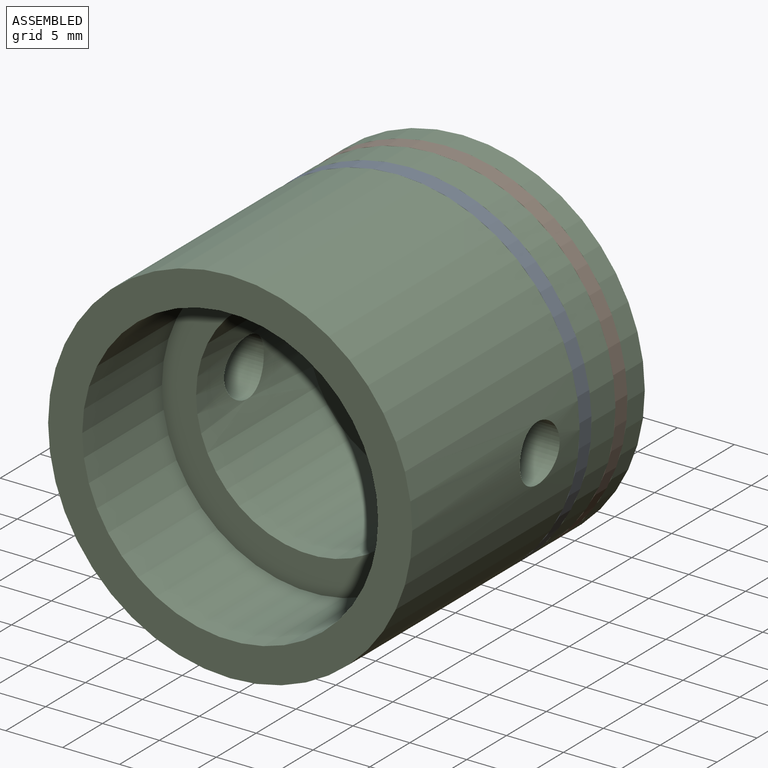
[diagram: assembled view]
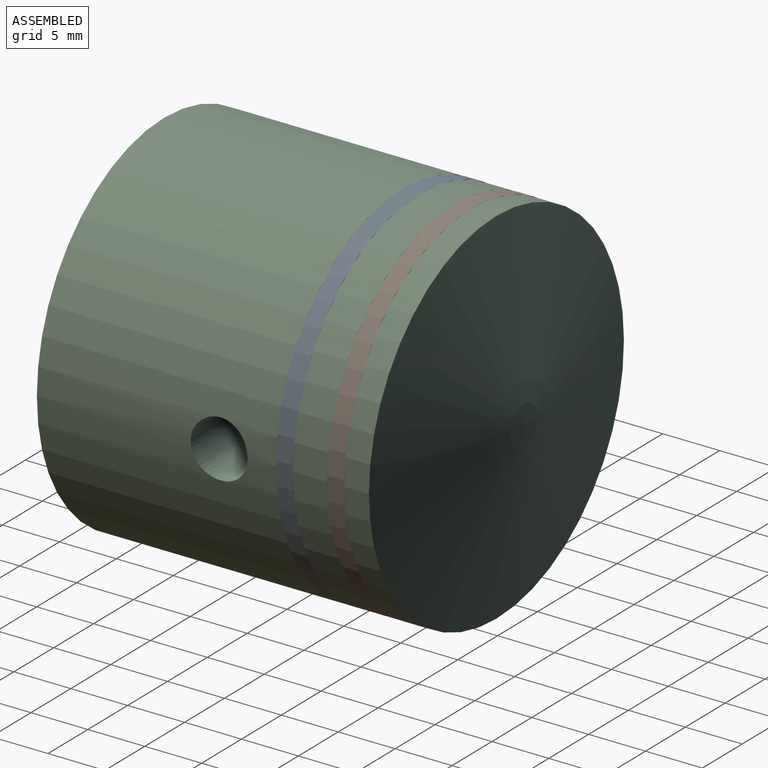
[diagram: assembled view, second angle]
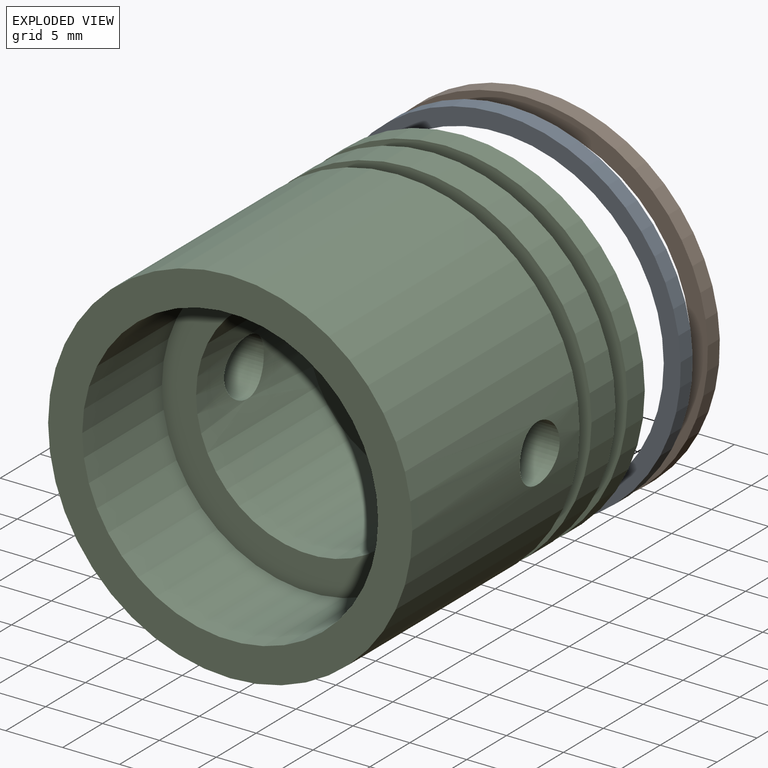
[diagram: exploded view]
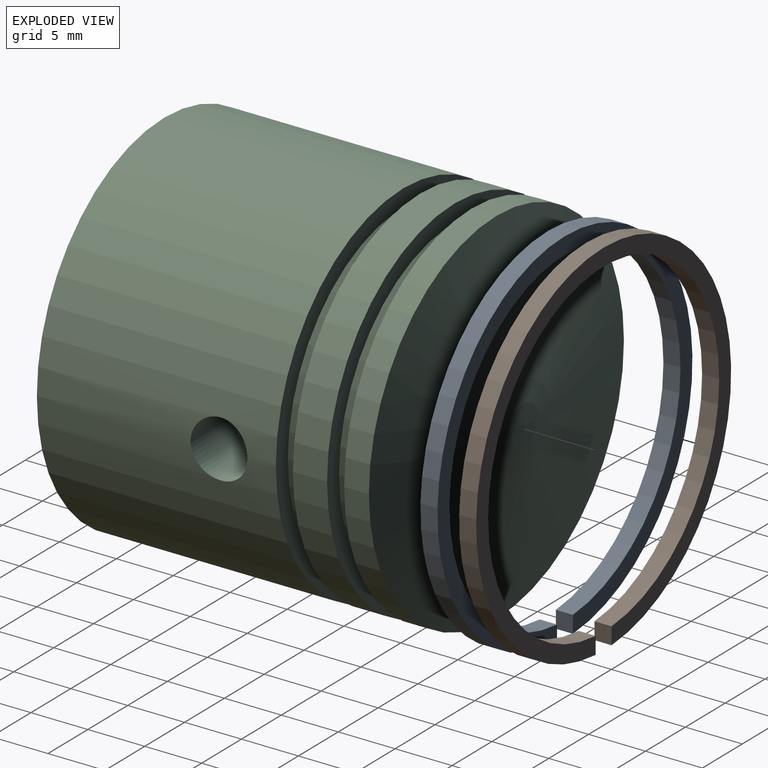
[diagram: exploded view, second angle]
ASSEMBLY  parts=3 mates=2
PART A: 6 faces, bbox 32x1.5x32 mm
  f0: plane 1.5x1.5mm, normal (1,0,0), area 2.3mm2, adj f1,f3,f4,f5
  f1: cylinder r=14.5mm len=29mm, axis (0,1,0), area 133.7mm2, adj f0,f2,f4,f5
  f2: plane 1.5x1.5mm, normal (-1,0,0), area 2.3mm2, adj f1,f3,f4,f5
  f3: cylinder r=16mm len=32mm, axis (0,1,0), area 147.8mm2, adj f0,f2,f4,f5
  f4: plane 32x31.97mm, normal (0,-1,0), area 140.7mm2, adj f0,f1,f2,f3
  f5: plane 32x31.97mm, normal (0,1,0), area 140.7mm2, adj f0,f1,f2,f3
PART B: same geometry as A
PART C: 18 faces, bbox 32x32x31.7 mm
  f0: cylinder r=10mm len=20mm, axis (0,0,-1), area 840.1mm2, adj f5,f6,f16,f17
  f1: cylinder r=16mm len=32mm, axis (0,0,-1), area 2071.7mm2, adj f8,f9,f16,f17
  f2: cylinder r=16mm len=32mm, axis (0,0,-1), area 219mm2, adj f3,f15
  f3: cone r=3.47mm half-angle=80deg, axis (0,0,-1), area 778.2mm2, adj f2,f4
  f4: sphere r=20mm, area 38.2mm2, adj f3
  f5: plane 20x20mm, normal (0,0,-1), area 314.2mm2, adj f0
  f6: plane 26x26mm, normal (0,0,-1), area 216.8mm2, adj f0,f7
  f7: cylinder r=13mm len=26mm, axis (0,0,-1), area 816.8mm2, adj f6,f8
  f8: plane 32x32mm, normal (0,0,-1), area 273.3mm2, adj f1,f7
  f9: plane 32x32mm, normal (0,0,1), area 143.7mm2, adj f1,f10
  f10: cylinder r=14.5mm len=29mm, axis (0,0,-1), area 136.7mm2, adj f9,f11
  f11: plane 32x32mm, normal (0,0,-1), area 143.7mm2, adj f10,f12
  f12: cylinder r=16mm len=32mm, axis (0,0,-1), area 301.6mm2, adj f11,f13
  f13: plane 32x32mm, normal (0,0,1), area 143.7mm2, adj f12,f14
  f14: cylinder r=14.5mm len=29mm, axis (0,0,-1), area 136.7mm2, adj f13,f15
  f15: plane 32x32mm, normal (0,0,-1), area 143.7mm2, adj f2,f14
  f16: cylinder r=2.5mm len=6.32mm, axis (-1,0,0), area 95.2mm2, adj f0,f1
  f17: cylinder r=2.5mm len=6.32mm, axis (-1,0,0), area 95.2mm2, adj f0,f1
PLACE A t=(-20.86,-17.38,-21.94)mm
PLACE B t=(-20.86,-12.88,-21.94)mm
PLACE C rot(axis=(-1,0,0),90deg) t=(-20.86,-39.88,-21.94)mm
MATE fastened C.f0 <-> B.f1  axis (0,-1,0) through (-20.86,-13.63,-21.94)mm
MATE fastened C.f0 <-> A.f1  axis (0,-1,0) through (-20.86,-18.13,-21.94)mm
